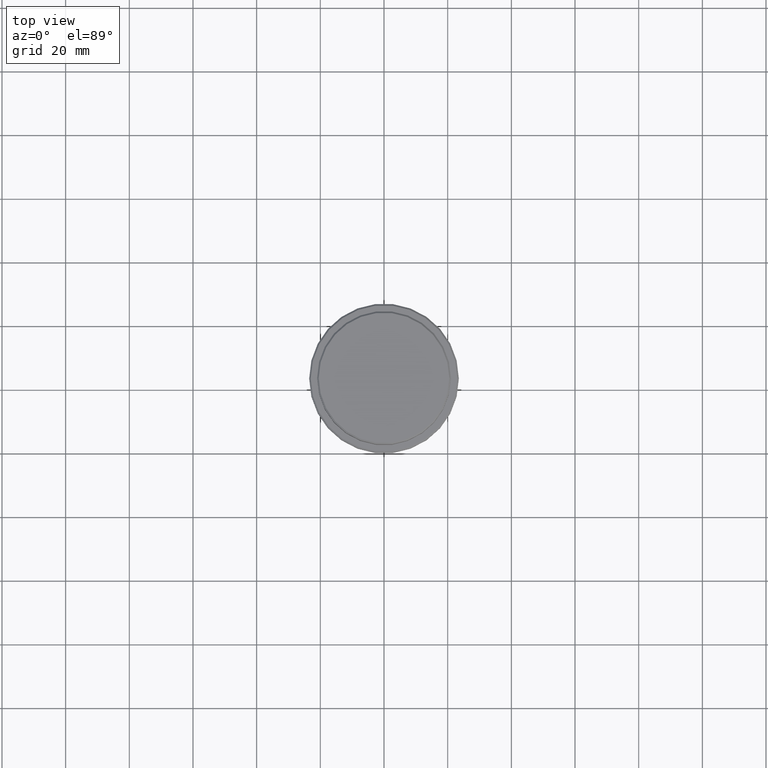
[diagram: clean part render]
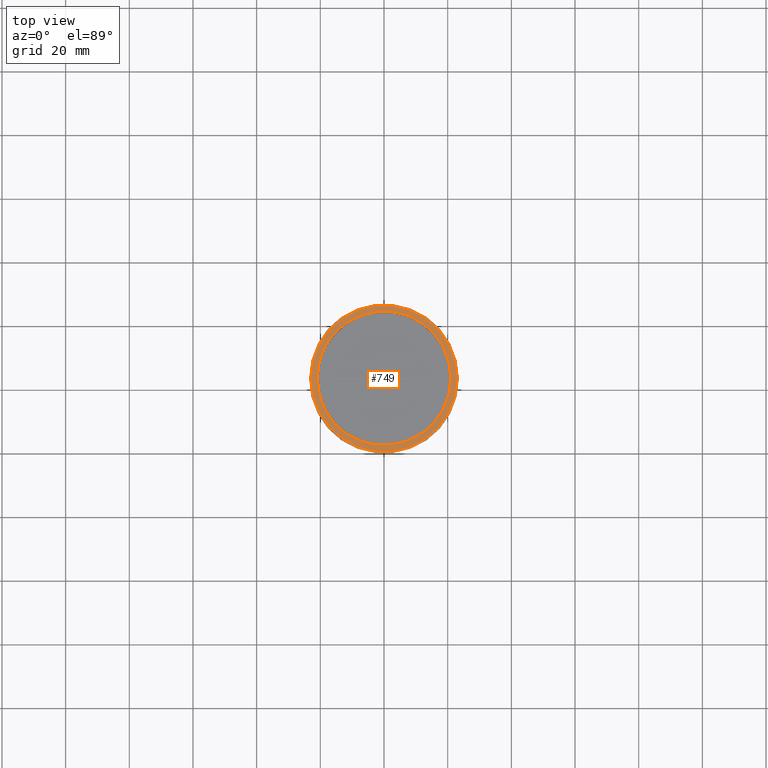
[diagram: same view with one face highlighted and labeled with its STEP entity id]
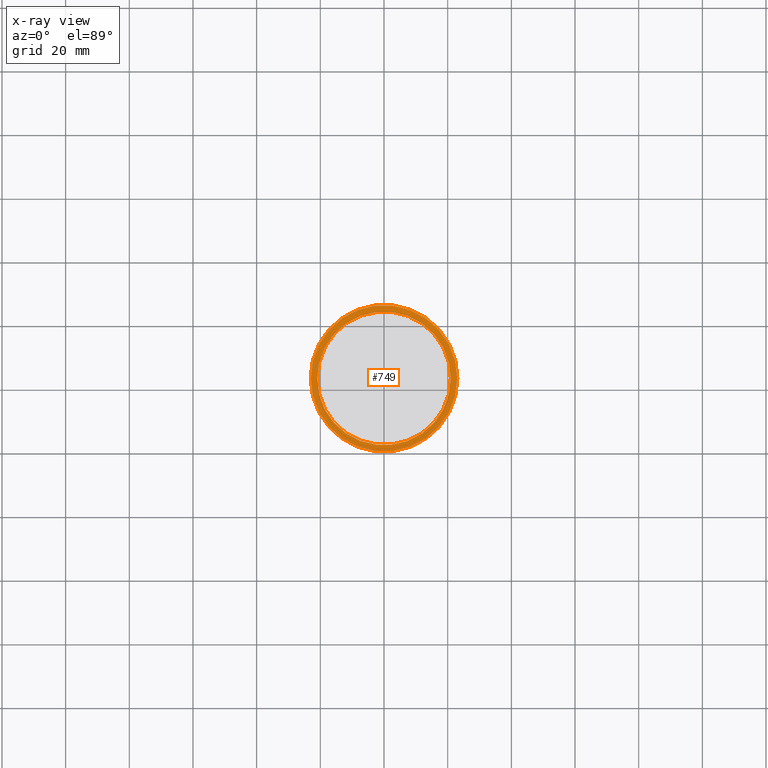
[diagram: x-ray of the same camera — body ghosted, the highlighted face saturated]
A machine part, top view. The second image highlights one B-rep face of the part: STEP entity #749.
The next image is the same camera in x-ray: the body ghosted, the highlighted face saturated — about 0% of this face is hidden behind the body in this view.
In plain terms, the highlighted planar face has unit normal (0, -0, 1).
Its self-contained STEP definition (entity closure, byte-faithful):
#2 = AXIS2_PLACEMENT_3D ( 'NONE', #1317, #217, #548 ) ;
#53 = CARTESIAN_POINT ( 'NONE',  ( 0.000000000000000000, 20.49999999999999645, -9.000000000000001776 ) ) ;
#94 = DIRECTION ( 'NONE',  ( 1.000000000000000000, 0.000000000000000000, 0.000000000000000000 ) ) ;
#151 = DIRECTION ( 'NONE',  ( 0.000000000000000000, -0.000000000000000000, 1.000000000000000000 ) ) ;
#158 = PLANE ( 'NONE',  #897 ) ;
#159 = DIRECTION ( 'NONE',  ( 1.000000000000000000, 0.000000000000000000, 0.000000000000000000 ) ) ;
#175 = VERTEX_POINT ( 'NONE', #604 ) ;
#199 = DIRECTION ( 'NONE',  ( 0.000000000000000000, 0.000000000000000000, -1.000000000000000000 ) ) ;
#202 = EDGE_CURVE ( 'NONE', #1057, #175, #688, .T. ) ;
#217 = DIRECTION ( 'NONE',  ( -0.000000000000000000, -0.000000000000000000, 1.000000000000000000 ) ) ;
#251 = FACE_BOUND ( 'NONE', #341, .T. ) ;
#267 = DIRECTION ( 'NONE',  ( -0.000000000000000000, -0.000000000000000000, 1.000000000000000000 ) ) ;
#297 = DIRECTION ( 'NONE',  ( 1.000000000000000000, 0.000000000000000000, 0.000000000000000000 ) ) ;
#341 = EDGE_LOOP ( 'NONE', ( #677, #642 ) ) ;
#348 = ORIENTED_EDGE ( 'NONE', *, *, #202, .T. ) ;
#387 = EDGE_CURVE ( 'NONE', #175, #1057, #734, .T. ) ;
#460 = AXIS2_PLACEMENT_3D ( 'NONE', #1159, #1184, #297 ) ;
#501 = EDGE_CURVE ( 'NONE', #1015, #1213, #989, .T. ) ;
#548 = DIRECTION ( 'NONE',  ( 1.000000000000000000, 0.000000000000000000, 0.000000000000000000 ) ) ;
#604 = CARTESIAN_POINT ( 'NONE',  ( 23.00000000000002487, 2.847303808017597717E-15, -9.000000000000001776 ) ) ;
#642 = ORIENTED_EDGE ( 'NONE', *, *, #960, .T. ) ;
#676 = FACE_OUTER_BOUND ( 'NONE', #717, .T. ) ;
#677 = ORIENTED_EDGE ( 'NONE', *, *, #501, .T. ) ;
#688 = CIRCLE ( 'NONE', #1011, 23.00000000000002487 ) ;
#696 = CARTESIAN_POINT ( 'NONE',  ( 0.000000000000000000, 0.000000000000000000, -9.000000000000001776 ) ) ;
#717 = EDGE_LOOP ( 'NONE', ( #348, #863 ) ) ;
#734 = CIRCLE ( 'NONE', #2, 23.00000000000002487 ) ;
#749 = ADVANCED_FACE ( 'NONE', ( #676, #251 ), #158, .T. ) ;
#863 = ORIENTED_EDGE ( 'NONE', *, *, #387, .T. ) ;
#897 = AXIS2_PLACEMENT_3D ( 'NONE', #53, #151, #906 ) ;
#906 = DIRECTION ( 'NONE',  ( 1.000000000000000000, 0.000000000000000000, 0.000000000000000000 ) ) ;
#960 = EDGE_CURVE ( 'NONE', #1213, #1015, #1168, .T. ) ;
#989 = CIRCLE ( 'NONE', #460, 20.99999999999999289 ) ;
#1011 = AXIS2_PLACEMENT_3D ( 'NONE', #696, #267, #159 ) ;
#1015 = VERTEX_POINT ( 'NONE', #1413 ) ;
#1057 = VERTEX_POINT ( 'NONE', #1209 ) ;
#1159 = CARTESIAN_POINT ( 'NONE',  ( 0.000000000000000000, 0.000000000000000000, -9.000000000000001776 ) ) ;
#1168 = CIRCLE ( 'NONE', #1354, 20.99999999999999289 ) ;
#1184 = DIRECTION ( 'NONE',  ( 0.000000000000000000, 0.000000000000000000, -1.000000000000000000 ) ) ;
#1209 = CARTESIAN_POINT ( 'NONE',  ( -23.00000000000002487, 0.000000000000000000, -9.000000000000001776 ) ) ;
#1213 = VERTEX_POINT ( 'NONE', #1319 ) ;
#1317 = CARTESIAN_POINT ( 'NONE',  ( 0.000000000000000000, 0.000000000000000000, -9.000000000000001776 ) ) ;
#1319 = CARTESIAN_POINT ( 'NONE',  ( -20.99999999999999289, 2.571758278209440872E-15, -9.000000000000001776 ) ) ;
#1354 = AXIS2_PLACEMENT_3D ( 'NONE', #1405, #199, #94 ) ;
#1405 = CARTESIAN_POINT ( 'NONE',  ( 0.000000000000000000, 0.000000000000000000, -9.000000000000001776 ) ) ;
#1413 = CARTESIAN_POINT ( 'NONE',  ( 20.99999999999999289, 0.000000000000000000, -9.000000000000001776 ) ) ;